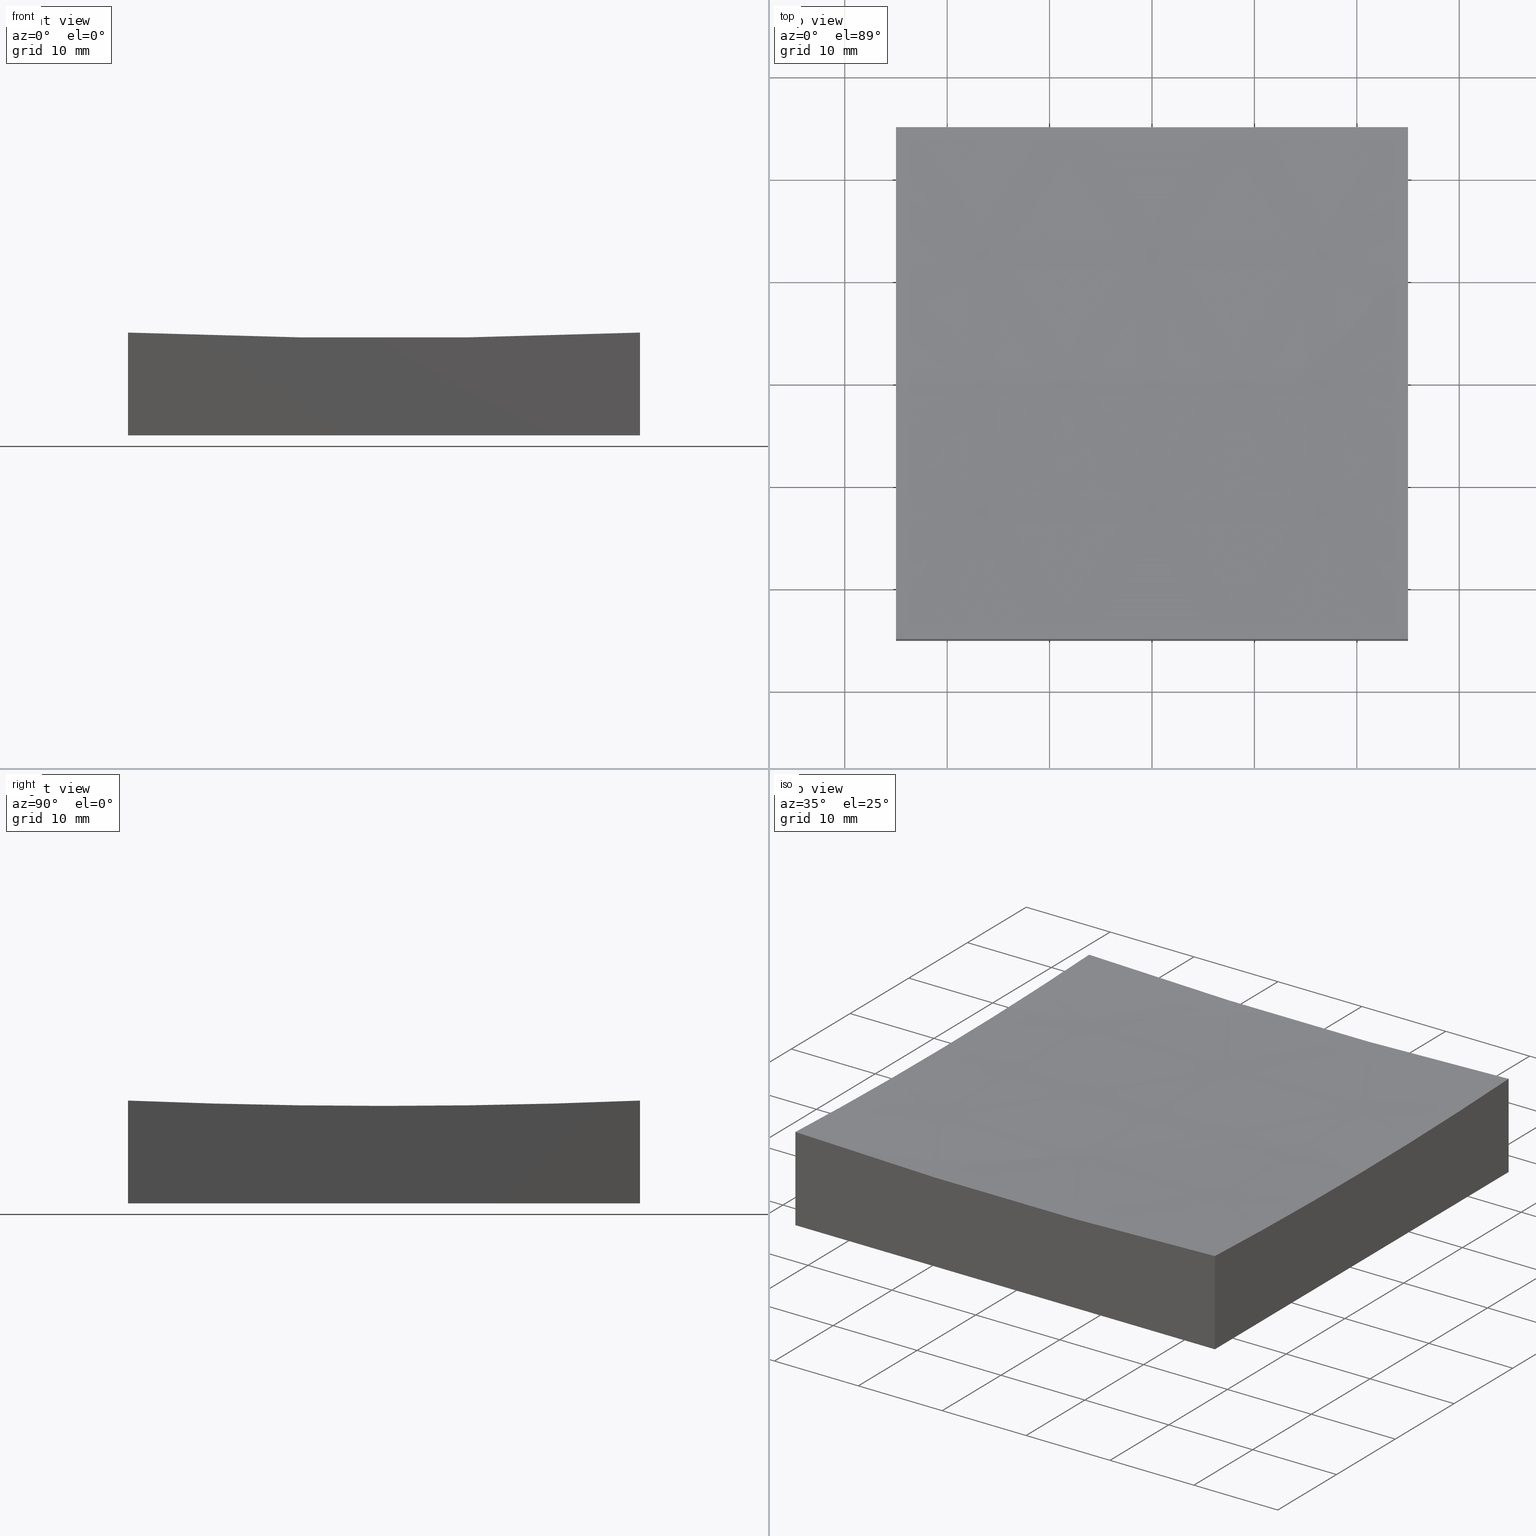
[diagram: canonical four-view strip — front | top / right | iso, engineering-drawing reading convention]
A machine part, canonical four-view strip (front | top / right | iso — engineering-drawing reading convention). The complete STEP part file that produces these views, byte-faithful:
ISO-10303-21;
HEADER;
FILE_DESCRIPTION (( 'STEP AP214' ),
    '1' );
FILE_NAME ('270056.STEP',
    '2020-06-08T05:53:21',
    ( '' ),
    ( '' ),
    'SwSTEP 2.0',
    'SolidWorks 2019',
    '' );
FILE_SCHEMA (( 'AUTOMOTIVE_DESIGN' ));
ENDSEC;

DATA;
#1 = DIRECTION ( 'NONE',  ( 1.000000000000000000, 6.938893903907228378E-17, -0.0000000000000000000 ) ) ;
#2 = ORIENTED_EDGE ( 'NONE', *, *, #240, .T. ) ;
#3 = CARTESIAN_POINT ( 'NONE',  ( 24.99999999999999645, 24.99999999999999645, 50.00000000000000000 ) ) ;
#4 = DIRECTION ( 'NONE',  ( -6.944925103571634921E-17, 1.000000000000000000, 0.0000000000000000000 ) ) ;
#5 = EDGE_CURVE ( 'NONE', #88, #231, #194, .T. ) ;
#6 = APPLICATION_CONTEXT ( 'automotive_design' ) ;
#7 = CLOSED_SHELL ( 'NONE', ( #12, #160, #44, #141, #75, #135, #26 ) ) ;
#8 = DIRECTION ( 'NONE',  ( 1.000000000000000000, 0.0000000000000000000, 1.850371707708594316E-16 ) ) ;
#9 = MECHANICAL_DESIGN_GEOMETRIC_PRESENTATION_REPRESENTATION (  '', ( #78 ), #223 ) ;
#10 = AXIS2_PLACEMENT_3D ( 'NONE', #187, #17, #148 ) ;
#11 = CARTESIAN_POINT ( 'NONE',  ( -25.00000000000000355, 24.99999999999999645, 0.0000000000000000000 ) ) ;
#12 = ADVANCED_FACE ( 'NONE', ( #199 ), #157, .F. ) ;
#13 = FACE_OUTER_BOUND ( 'NONE', #35, .T. ) ;
#14 = DIRECTION ( 'NONE',  ( -0.0000000000000000000, -0.0000000000000000000, -1.000000000000000000 ) ) ;
#15 = ORIENTED_EDGE ( 'NONE', *, *, #110, .F. ) ;
#16 = DIRECTION ( 'NONE',  ( 0.0000000000000000000, 0.0000000000000000000, 1.000000000000000000 ) ) ;
#17 = DIRECTION ( 'NONE',  ( 0.0000000000000000000, 0.0000000000000000000, -1.000000000000000000 ) ) ;
#18 = ORIENTED_EDGE ( 'NONE', *, *, #235, .F. ) ;
#19 = ORIENTED_EDGE ( 'NONE', *, *, #200, .F. ) ;
#20 = ORIENTED_EDGE ( 'NONE', *, *, #214, .T. ) ;
#21 = EDGE_CURVE ( 'NONE', #231, #248, #79, .T. ) ;
#22 = AXIS2_PLACEMENT_3D ( 'NONE', #136, #23, #155 ) ;
#23 = DIRECTION ( 'NONE',  ( 0.0000000000000000000, 0.0000000000000000000, 1.000000000000000000 ) ) ;
#24 = VECTOR ( 'NONE', #66, 1000.000000000000000 ) ;
#25 = ORIENTED_EDGE ( 'NONE', *, *, #115, .F. ) ;
#26 = ADVANCED_FACE ( 'NONE', ( #80 ), #229, .F. ) ;
#27 = DIRECTION ( 'NONE',  ( 1.000000000000000000, 6.938893903907228378E-17, -0.0000000000000000000 ) ) ;
#28 = CARTESIAN_POINT ( 'NONE',  ( -25.00000000000000355, 24.99999999999999645, 50.00000000000000000 ) ) ;
#29 = DIRECTION ( 'NONE',  ( 0.0000000000000000000, 1.000000000000000000, 0.0000000000000000000 ) ) ;
#30 = ORIENTED_EDGE ( 'NONE', *, *, #180, .T. ) ;
#31 = CARTESIAN_POINT ( 'NONE',  ( 25.00000000000000000, -25.00000000000000711, 10.04257246445305896 ) ) ;
#32 = VECTOR ( 'NONE', #173, 1000.000000000000000 ) ;
#33 = ORIENTED_EDGE ( 'NONE', *, *, #110, .T. ) ;
#34 =( NAMED_UNIT ( * ) SI_UNIT ( $, .STERADIAN. ) SOLID_ANGLE_UNIT ( ) );
#35 = EDGE_LOOP ( 'NONE', ( #63, #138, #245, #236, #74 ) ) ;
#36 =( NAMED_UNIT ( * ) PLANE_ANGLE_UNIT ( ) SI_UNIT ( $, .RADIAN. ) );
#37 = DIRECTION ( 'NONE',  ( 1.000000000000000000, 6.938893903907228378E-17, -0.0000000000000000000 ) ) ;
#38 = AXIS2_PLACEMENT_3D ( 'NONE', #249, #207, #142 ) ;
#39 = EDGE_LOOP ( 'NONE', ( #212, #55, #49, #168, #146 ) ) ;
#40 = VECTOR ( 'NONE', #250, 1000.000000000000000 ) ;
#41 = PRODUCT_DEFINITION_FORMATION_WITH_SPECIFIED_SOURCE ( '�κ�', '', #178, .NOT_KNOWN. ) ;
#42 = FILL_AREA_STYLE ('',( #225 ) ) ;
#43 = CARTESIAN_POINT ( 'NONE',  ( 7.458099006807380620E-14, 0.0000000000000000000, 609.0000000000000000 ) ) ;
#44 = ADVANCED_FACE ( 'NONE', ( #13 ), #206, .F. ) ;
#45 =( NAMED_UNIT ( * ) PLANE_ANGLE_UNIT ( ) SI_UNIT ( $, .RADIAN. ) );
#46 = DIRECTION ( 'NONE',  ( 6.938893903907228378E-17, -1.000000000000000000, 0.0000000000000000000 ) ) ;
#47 = DIRECTION ( 'NONE',  ( -6.938893903907228378E-17, 1.000000000000000000, 0.0000000000000000000 ) ) ;
#48 = CARTESIAN_POINT ( 'NONE',  ( -25.00000000000000355, 24.99999999999999645, 50.00000000000000000 ) ) ;
#49 = ORIENTED_EDGE ( 'NONE', *, *, #57, .F. ) ;
#50 = CARTESIAN_POINT ( 'NONE',  ( 24.99999999999999645, 24.99999999999999645, 50.00000000000000000 ) ) ;
#51 = DIRECTION ( 'NONE',  ( 0.0000000000000000000, -0.0000000000000000000, 1.000000000000000000 ) ) ;
#52 = LINE ( 'NONE', #139, #113 ) ;
#53 = ORIENTED_EDGE ( 'NONE', *, *, #21, .T. ) ;
#54 = SURFACE_SIDE_STYLE ('',( #219 ) ) ;
#55 = ORIENTED_EDGE ( 'NONE', *, *, #154, .T. ) ;
#56 =( GEOMETRIC_REPRESENTATION_CONTEXT ( 3 ) GLOBAL_UNCERTAINTY_ASSIGNED_CONTEXT ( ( #241 ) ) GLOBAL_UNIT_ASSIGNED_CONTEXT ( ( #100, #45, #201 ) ) REPRESENTATION_CONTEXT ( 'NONE', 'WORKASPACE' ) );
#57 = EDGE_CURVE ( 'NONE', #211, #91, #186, .T. ) ;
#58 = SURFACE_STYLE_USAGE ( .BOTH. , #54 ) ;
#59 = AXIS2_PLACEMENT_3D ( 'NONE', #67, #101, #182 ) ;
#60 = CARTESIAN_POINT ( 'NONE',  ( 24.99999999999999645, 24.99999999999999645, 10.04257246445305896 ) ) ;
#61 = EDGE_CURVE ( 'NONE', #248, #252, #68, .T. ) ;
#62 = CIRCLE ( 'NONE', #205, 599.4789404140898341 ) ;
#63 = ORIENTED_EDGE ( 'NONE', *, *, #180, .F. ) ;
#64 = CIRCLE ( 'NONE', #172, 599.4789404140898341 ) ;
#65 = EDGE_CURVE ( 'NONE', #88, #119, #228, .T. ) ;
#66 = DIRECTION ( 'NONE',  ( 1.000000000000000000, 0.0000000000000000000, 0.0000000000000000000 ) ) ;
#67 = CARTESIAN_POINT ( 'NONE',  ( 7.458099006807380620E-14, 0.0000000000000000000, 609.0000000000000000 ) ) ;
#68 = CIRCLE ( 'NONE', #87, 599.4789404140898341 ) ;
#69 = CARTESIAN_POINT ( 'NONE',  ( 1.896770381225379131E-13, 0.0000000000000000000, 9.000000000000007105 ) ) ;
#70 = DIRECTION ( 'NONE',  ( 0.0000000000000000000, 1.000000000000000000, 0.0000000000000000000 ) ) ;
#71 = EDGE_LOOP ( 'NONE', ( #222, #2, #191, #25 ) ) ;
#72 = PLANE ( 'NONE',  #216 ) ;
#73 = FACE_OUTER_BOUND ( 'NONE', #125, .T. ) ;
#74 = ORIENTED_EDGE ( 'NONE', *, *, #167, .T. ) ;
#75 = ADVANCED_FACE ( 'NONE', ( #144 ), #72, .T. ) ;
#76 =( NAMED_UNIT ( * ) PLANE_ANGLE_UNIT ( ) SI_UNIT ( $, .RADIAN. ) );
#77 = CARTESIAN_POINT ( 'NONE',  ( -25.00000000000000000, -25.00000000000000711, 0.0000000000000000000 ) ) ;
#78 = STYLED_ITEM ( 'NONE', ( #152 ), #203 ) ;
#79 = CIRCLE ( 'NONE', #143, 599.4789404140898341 ) ;
#80 = FACE_OUTER_BOUND ( 'NONE', #226, .T. ) ;
#81 = DIRECTION ( 'NONE',  ( -6.944925103571634921E-17, 1.000000000000000000, 0.0000000000000000000 ) ) ;
#82 = PRODUCT_DEFINITION ( 'δ֪', '', #41, #220 ) ;
#83 = VECTOR ( 'NONE', #14, 1000.000000000000000 ) ;
#84 = LINE ( 'NONE', #158, #24 ) ;
#85 = CARTESIAN_POINT ( 'NONE',  ( 7.458099006807380620E-14, 24.99999999999999645, 609.0000000000000000 ) ) ;
#86 = CARTESIAN_POINT ( 'NONE',  ( -25.00000000000000000, -25.00000000000000711, 50.00000000000000000 ) ) ;
#87 = AXIS2_PLACEMENT_3D ( 'NONE', #85, #123, #16 ) ;
#88 = VERTEX_POINT ( 'NONE', #69 ) ;
#89 = CARTESIAN_POINT ( 'NONE',  ( 25.00000000000000000, -25.00000000000000711, 0.0000000000000000000 ) ) ;
#90 = LINE ( 'NONE', #230, #83 ) ;
#91 = VERTEX_POINT ( 'NONE', #89 ) ;
#92 = EDGE_CURVE ( 'NONE', #119, #252, #98, .T. ) ;
#93 = CARTESIAN_POINT ( 'NONE',  ( 24.99999999999999645, 1.734723475976801967E-15, 609.0000000000000000 ) ) ;
#94 = DIRECTION ( 'NONE',  ( -6.944925103571634921E-17, 1.000000000000000000, 0.0000000000000000000 ) ) ;
#95 = CIRCLE ( 'NONE', #130, 599.4789404140898341 ) ;
#96 = COLOUR_RGB ( '',1.000000000000000000, 1.000000000000000000, 1.000000000000000000 ) ;
#97 = PRODUCT_CONTEXT ( 'NONE', #171, 'mechanical' ) ;
#98 = CIRCLE ( 'NONE', #38, 599.4789404140898341 ) ;
#99 = UNCERTAINTY_MEASURE_WITH_UNIT (LENGTH_MEASURE( 1.000000000000000082E-05 ), #215, 'distance_accuracy_value', 'NONE');
#100 =( LENGTH_UNIT ( ) NAMED_UNIT ( * ) SI_UNIT ( .MILLI., .METRE. ) );
#101 = DIRECTION ( 'NONE',  ( 0.0000000000000000000, -1.000000000000000000, 0.0000000000000000000 ) ) ;
#102 = DIRECTION ( 'NONE',  ( 1.224646799147353207E-16, 1.000000000000000000, 1.599320222742561506E-32 ) ) ;
#103 = FACE_OUTER_BOUND ( 'NONE', #128, .T. ) ;
#104 = DIRECTION ( 'NONE',  ( -6.938893903907228378E-17, 1.000000000000000000, 0.0000000000000000000 ) ) ;
#105 = LINE ( 'NONE', #11, #32 ) ;
#106 = ORIENTED_EDGE ( 'NONE', *, *, #200, .T. ) ;
#107 = PRESENTATION_LAYER_ASSIGNMENT (  '', '', ( #175 ) ) ;
#108 = LINE ( 'NONE', #86, #188 ) ;
#109 =( GEOMETRIC_REPRESENTATION_CONTEXT ( 3 ) GLOBAL_UNCERTAINTY_ASSIGNED_CONTEXT ( ( #99 ) ) GLOBAL_UNIT_ASSIGNED_CONTEXT ( ( #215, #76, #34 ) ) REPRESENTATION_CONTEXT ( 'NONE', 'WORKASPACE' ) );
#110 = EDGE_CURVE ( 'NONE', #251, #91, #84, .T. ) ;
#111 = ORIENTED_EDGE ( 'NONE', *, *, #5, .T. ) ;
#112 = FILL_AREA_STYLE_COLOUR ( '', #116 ) ;
#113 = VECTOR ( 'NONE', #227, 1000.000000000000000 ) ;
#114 = LINE ( 'NONE', #3, #213 ) ;
#115 = EDGE_CURVE ( 'NONE', #252, #131, #52, .T. ) ;
#116 = COLOUR_RGB ( '',1.000000000000000000, 1.000000000000000000, 1.000000000000000000 ) ;
#117 = MANIFOLD_SOLID_BREP ( '�г�-��ת2', #7 ) ;
#118 = AXIS2_PLACEMENT_3D ( 'NONE', #43, #202, #8 ) ;
#119 = VERTEX_POINT ( 'NONE', #244 ) ;
#120 = SURFACE_STYLE_USAGE ( .BOTH. , #204 ) ;
#121 = ORIENTED_EDGE ( 'NONE', *, *, #167, .F. ) ;
#122 = DIRECTION ( 'NONE',  ( 1.000000000000000000, 0.0000000000000000000, 1.850371707708594316E-16 ) ) ;
#123 = DIRECTION ( 'NONE',  ( 0.0000000000000000000, 1.000000000000000000, 0.0000000000000000000 ) ) ;
#124 = DIRECTION ( 'NONE',  ( -0.0000000000000000000, -0.0000000000000000000, -1.000000000000000000 ) ) ;
#125 = EDGE_LOOP ( 'NONE', ( #127, #106, #30, #33 ) ) ;
#126 = LINE ( 'NONE', #208, #40 ) ;
#127 = ORIENTED_EDGE ( 'NONE', *, *, #154, .F. ) ;
#128 = EDGE_LOOP ( 'NONE', ( #189, #190, #15, #121 ) ) ;
#129 = MECHANICAL_DESIGN_GEOMETRIC_PRESENTATION_REPRESENTATION (  '', ( #175 ), #56 ) ;
#130 = AXIS2_PLACEMENT_3D ( 'NONE', #217, #1, #94 ) ;
#131 = VERTEX_POINT ( 'NONE', #233 ) ;
#132 = AXIS2_PLACEMENT_3D ( 'NONE', #165, #184, #122 ) ;
#133 = CARTESIAN_POINT ( 'NONE',  ( 7.458099006807380620E-14, -25.00000000000000711, 609.0000000000000000 ) ) ;
#134 = DIRECTION ( 'NONE',  ( 0.0000000000000000000, 1.000000000000000000, 0.0000000000000000000 ) ) ;
#135 = ADVANCED_FACE ( 'NONE', ( #103 ), #166, .T. ) ;
#136 = CARTESIAN_POINT ( 'NONE',  ( 0.0000000000000000000, 0.0000000000000000000, 0.0000000000000000000 ) ) ;
#137 = PRODUCT_DEFINITION_SHAPE ( 'NONE', 'NONE',  #82 ) ;
#138 = ORIENTED_EDGE ( 'NONE', *, *, #235, .T. ) ;
#139 = CARTESIAN_POINT ( 'NONE',  ( -25.00000000000000355, 24.99999999999999645, 50.00000000000000000 ) ) ;
#140 = CARTESIAN_POINT ( 'NONE',  ( 24.99999999999999645, 1.734723475976801967E-15, 609.0000000000000000 ) ) ;
#141 = ADVANCED_FACE ( 'NONE', ( #73 ), #163, .F. ) ;
#142 = DIRECTION ( 'NONE',  ( -6.944925103571634921E-17, 1.000000000000000000, 0.0000000000000000000 ) ) ;
#143 = AXIS2_PLACEMENT_3D ( 'NONE', #140, #242, #81 ) ;
#144 = FACE_OUTER_BOUND ( 'NONE', #39, .T. ) ;
#145 = DIRECTION ( 'NONE',  ( 0.0000000000000000000, -0.0000000000000000000, 1.000000000000000000 ) ) ;
#146 = ORIENTED_EDGE ( 'NONE', *, *, #21, .F. ) ;
#147 = CARTESIAN_POINT ( 'NONE',  ( 24.99999999999999645, 24.99999999999999645, 0.0000000000000000000 ) ) ;
#148 = DIRECTION ( 'NONE',  ( -1.000000000000000000, 0.0000000000000000000, -0.0000000000000000000 ) ) ;
#149 = ORIENTED_EDGE ( 'NONE', *, *, #61, .T. ) ;
#150 = DIRECTION ( 'NONE',  ( -0.0000000000000000000, -0.0000000000000000000, -1.000000000000000000 ) ) ;
#151 = AXIS2_PLACEMENT_3D ( 'NONE', #48, #70, #145 ) ;
#152 = PRESENTATION_STYLE_ASSIGNMENT (( #58 ) ) ;
#153 = PRESENTATION_LAYER_ASSIGNMENT (  '', '', ( #78 ) ) ;
#154 = EDGE_CURVE ( 'NONE', #179, #91, #90, .T. ) ;
#155 = DIRECTION ( 'NONE',  ( 1.000000000000000000, 0.0000000000000000000, 0.0000000000000000000 ) ) ;
#156 = APPLICATION_PROTOCOL_DEFINITION ( 'draft international standard', 'automotive_design', 1998, #171 ) ;
#157 = SPHERICAL_SURFACE ( 'NONE', #118, 600.0000000000000000 ) ;
#158 = CARTESIAN_POINT ( 'NONE',  ( -25.00000000000000000, -25.00000000000000711, 0.0000000000000000000 ) ) ;
#159 = ORIENTED_EDGE ( 'NONE', *, *, #65, .T. ) ;
#160 = ADVANCED_FACE ( 'NONE', ( #247 ), #210, .T. ) ;
#161 = PRESENTATION_STYLE_ASSIGNMENT (( #120 ) ) ;
#162 = DIRECTION ( 'NONE',  ( -1.000000000000000000, 1.224646799147353207E-16, 0.0000000000000000000 ) ) ;
#163 = PLANE ( 'NONE',  #197 ) ;
#164 = ORIENTED_EDGE ( 'NONE', *, *, #5, .F. ) ;
#165 = CARTESIAN_POINT ( 'NONE',  ( 7.458099006807380620E-14, 0.0000000000000000000, 609.0000000000000000 ) ) ;
#166 = PLANE ( 'NONE',  #10 ) ;
#167 = EDGE_CURVE ( 'NONE', #131, #251, #126, .T. ) ;
#168 = ORIENTED_EDGE ( 'NONE', *, *, #240, .F. ) ;
#169 = DIRECTION ( 'NONE',  ( 0.0000000000000000000, 0.0000000000000000000, 1.000000000000000000 ) ) ;
#170 = EDGE_LOOP ( 'NONE', ( #164, #159, #18, #19, #20 ) ) ;
#171 = APPLICATION_CONTEXT ( 'automotive_design' ) ;
#172 = AXIS2_PLACEMENT_3D ( 'NONE', #133, #134, #169 ) ;
#173 = DIRECTION ( 'NONE',  ( 1.000000000000000000, 0.0000000000000000000, 0.0000000000000000000 ) ) ;
#174 = CARTESIAN_POINT ( 'NONE',  ( 24.99999999999999289, 0.0000000000000000000, 9.521059585910096601 ) ) ;
#175 = STYLED_ITEM ( 'NONE', ( #161 ), #117 ) ;
#176 = APPLICATION_PROTOCOL_DEFINITION ( 'draft international standard', 'automotive_design', 1998, #6 ) ;
#177 = VECTOR ( 'NONE', #46, 1000.000000000000000 ) ;
#178 = PRODUCT ( '270056', '270056', '', ( #97 ) ) ;
#179 = VERTEX_POINT ( 'NONE', #31 ) ;
#180 = EDGE_CURVE ( 'NONE', #234, #251, #108, .T. ) ;
#181 = SURFACE_STYLE_FILL_AREA ( #42 ) ;
#182 = DIRECTION ( 'NONE',  ( 0.0000000000000000000, 0.0000000000000000000, -1.000000000000000000 ) ) ;
#183 = UNCERTAINTY_MEASURE_WITH_UNIT (LENGTH_MEASURE( 1.000000000000000082E-05 ), #237, 'distance_accuracy_value', 'NONE');
#184 = DIRECTION ( 'NONE',  ( -0.0000000000000000000, 1.000000000000000000, 0.0000000000000000000 ) ) ;
#185 = CARTESIAN_POINT ( 'NONE',  ( -25.00000000000000000, -25.00000000000000711, 50.00000000000000000 ) ) ;
#186 = LINE ( 'NONE', #147, #177 ) ;
#187 = CARTESIAN_POINT ( 'NONE',  ( 0.0000000000000000000, 0.0000000000000000000, 0.0000000000000000000 ) ) ;
#188 = VECTOR ( 'NONE', #124, 1000.000000000000000 ) ;
#189 = ORIENTED_EDGE ( 'NONE', *, *, #193, .T. ) ;
#190 = ORIENTED_EDGE ( 'NONE', *, *, #57, .T. ) ;
#191 = ORIENTED_EDGE ( 'NONE', *, *, #193, .F. ) ;
#192 =( NAMED_UNIT ( * ) SI_UNIT ( $, .STERADIAN. ) SOLID_ANGLE_UNIT ( ) );
#193 = EDGE_CURVE ( 'NONE', #131, #211, #105, .T. ) ;
#194 = CIRCLE ( 'NONE', #59, 600.0000000000000000 ) ;
#195 = CARTESIAN_POINT ( 'NONE',  ( -25.00000000000000711, 24.99999999999999645, 10.04257246445305896 ) ) ;
#196 = CARTESIAN_POINT ( 'NONE',  ( 24.99999999999999645, 24.99999999999999645, 0.0000000000000000000 ) ) ;
#197 = AXIS2_PLACEMENT_3D ( 'NONE', #185, #29, #51 ) ;
#198 = AXIS2_PLACEMENT_3D ( 'NONE', #28, #27, #104 ) ;
#199 = FACE_OUTER_BOUND ( 'NONE', #170, .T. ) ;
#200 = EDGE_CURVE ( 'NONE', #179, #234, #64, .T. ) ;
#201 =( NAMED_UNIT ( * ) SI_UNIT ( $, .STERADIAN. ) SOLID_ANGLE_UNIT ( ) );
#202 = DIRECTION ( 'NONE',  ( -0.0000000000000000000, 1.000000000000000000, 0.0000000000000000000 ) ) ;
#203 = ADVANCED_BREP_SHAPE_REPRESENTATION ( '270056', ( #117, #22 ), #109 ) ;
#204 = SURFACE_SIDE_STYLE ('',( #181 ) ) ;
#205 = AXIS2_PLACEMENT_3D ( 'NONE', #93, #37, #4 ) ;
#206 = PLANE ( 'NONE',  #198 ) ;
#207 = DIRECTION ( 'NONE',  ( 1.000000000000000000, 6.938893903907228378E-17, -0.0000000000000000000 ) ) ;
#208 = CARTESIAN_POINT ( 'NONE',  ( -25.00000000000000355, 24.99999999999999645, 0.0000000000000000000 ) ) ;
#209 = ORIENTED_EDGE ( 'NONE', *, *, #92, .F. ) ;
#210 = PLANE ( 'NONE',  #151 ) ;
#211 = VERTEX_POINT ( 'NONE', #196 ) ;
#212 = ORIENTED_EDGE ( 'NONE', *, *, #214, .F. ) ;
#213 = VECTOR ( 'NONE', #150, 1000.000000000000000 ) ;
#214 = EDGE_CURVE ( 'NONE', #179, #231, #62, .T. ) ;
#215 =( LENGTH_UNIT ( ) NAMED_UNIT ( * ) SI_UNIT ( .MILLI., .METRE. ) );
#216 = AXIS2_PLACEMENT_3D ( 'NONE', #50, #246, #47 ) ;
#217 = CARTESIAN_POINT ( 'NONE',  ( -25.00000000000000355, -1.734723475976812419E-15, 609.0000000000000000 ) ) ;
#218 = CARTESIAN_POINT ( 'NONE',  ( -25.00000000000000000, -25.00000000000000711, 10.04257246445305896 ) ) ;
#219 = SURFACE_STYLE_FILL_AREA ( #239 ) ;
#220 = PRODUCT_DEFINITION_CONTEXT ( 'detailed design', #6, 'design' ) ;
#221 = SHAPE_DEFINITION_REPRESENTATION ( #137, #203 ) ;
#222 = ORIENTED_EDGE ( 'NONE', *, *, #61, .F. ) ;
#223 =( GEOMETRIC_REPRESENTATION_CONTEXT ( 3 ) GLOBAL_UNCERTAINTY_ASSIGNED_CONTEXT ( ( #183 ) ) GLOBAL_UNIT_ASSIGNED_CONTEXT ( ( #237, #36, #192 ) ) REPRESENTATION_CONTEXT ( 'NONE', 'WORKASPACE' ) );
#224 = ORIENTED_EDGE ( 'NONE', *, *, #65, .F. ) ;
#225 = FILL_AREA_STYLE_COLOUR ( '', #96 ) ;
#226 = EDGE_LOOP ( 'NONE', ( #224, #111, #53, #149, #209 ) ) ;
#227 = DIRECTION ( 'NONE',  ( -0.0000000000000000000, -0.0000000000000000000, -1.000000000000000000 ) ) ;
#228 = CIRCLE ( 'NONE', #238, 600.0000000000000000 ) ;
#229 = SPHERICAL_SURFACE ( 'NONE', #132, 600.0000000000000000 ) ;
#230 = CARTESIAN_POINT ( 'NONE',  ( 25.00000000000000000, -25.00000000000000711, 50.00000000000000000 ) ) ;
#231 = VERTEX_POINT ( 'NONE', #174 ) ;
#232 = CARTESIAN_POINT ( 'NONE',  ( 7.458099006807380620E-14, 0.0000000000000000000, 609.0000000000000000 ) ) ;
#233 = CARTESIAN_POINT ( 'NONE',  ( -25.00000000000000355, 24.99999999999999645, 0.0000000000000000000 ) ) ;
#234 = VERTEX_POINT ( 'NONE', #218 ) ;
#235 = EDGE_CURVE ( 'NONE', #234, #119, #95, .T. ) ;
#236 = ORIENTED_EDGE ( 'NONE', *, *, #115, .T. ) ;
#237 =( LENGTH_UNIT ( ) NAMED_UNIT ( * ) SI_UNIT ( .MILLI., .METRE. ) );
#238 = AXIS2_PLACEMENT_3D ( 'NONE', #232, #102, #162 ) ;
#239 = FILL_AREA_STYLE ('',( #112 ) ) ;
#240 = EDGE_CURVE ( 'NONE', #248, #211, #114, .T. ) ;
#241 = UNCERTAINTY_MEASURE_WITH_UNIT (LENGTH_MEASURE( 1.000000000000000082E-05 ), #100, 'distance_accuracy_value', 'NONE');
#242 = DIRECTION ( 'NONE',  ( 1.000000000000000000, 6.938893903907228378E-17, -0.0000000000000000000 ) ) ;
#243 = PRODUCT_RELATED_PRODUCT_CATEGORY ( 'part', '', ( #178 ) ) ;
#244 = CARTESIAN_POINT ( 'NONE',  ( -25.00000000000000355, 3.061616997868401581E-15, 9.521059585910096601 ) ) ;
#245 = ORIENTED_EDGE ( 'NONE', *, *, #92, .T. ) ;
#246 = DIRECTION ( 'NONE',  ( 1.000000000000000000, 6.938893903907228378E-17, -0.0000000000000000000 ) ) ;
#247 = FACE_OUTER_BOUND ( 'NONE', #71, .T. ) ;
#248 = VERTEX_POINT ( 'NONE', #60 ) ;
#249 = CARTESIAN_POINT ( 'NONE',  ( -25.00000000000000355, -1.734723475976812419E-15, 609.0000000000000000 ) ) ;
#250 = DIRECTION ( 'NONE',  ( 6.938893903907228378E-17, -1.000000000000000000, 0.0000000000000000000 ) ) ;
#251 = VERTEX_POINT ( 'NONE', #77 ) ;
#252 = VERTEX_POINT ( 'NONE', #195 ) ;
ENDSEC;
END-ISO-10303-21;
